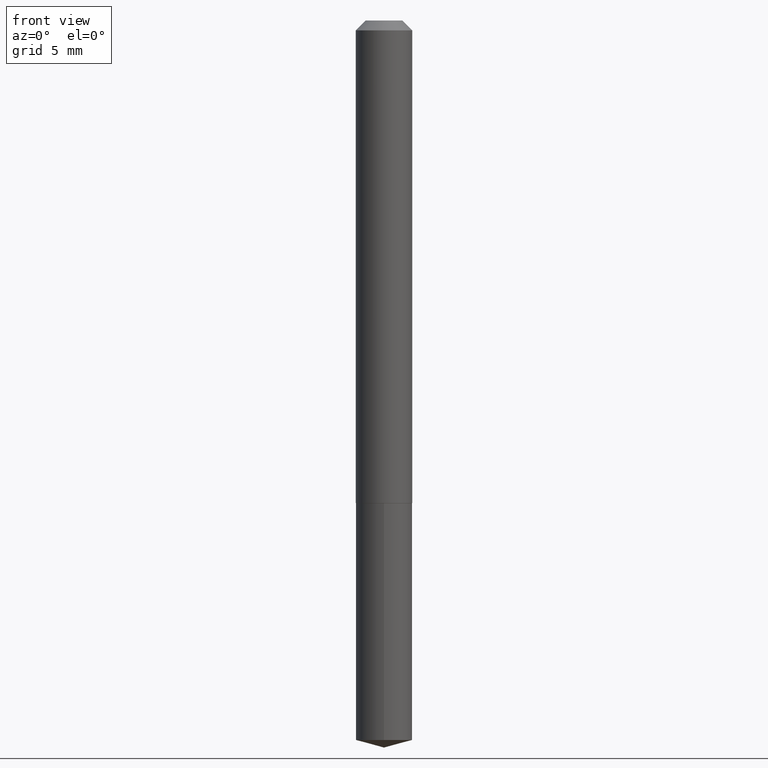
[diagram: clean part render]
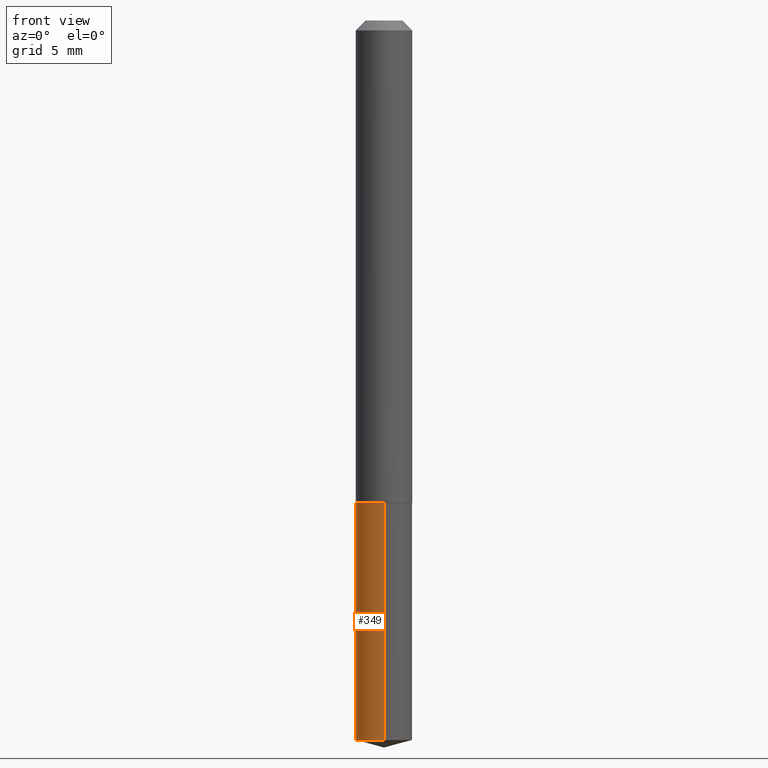
[diagram: same view with one face highlighted and labeled with its STEP entity id]
A machine part, front view. The second image highlights one B-rep face of the part: STEP entity #349.
In plain terms, the highlighted cylindrical surface (edge-blend (fillet) strip) has radius 2.2504 mm, axis along (-0, 0, 1).
Its self-contained STEP definition (entity closure, byte-faithful):
#2 = EDGE_CURVE ( 'NONE', #19, #376, #138, .T. ) ;
#4 = LINE ( 'NONE', #361, #304 ) ;
#12 = EDGE_CURVE ( 'NONE', #376, #255, #97, .T. ) ;
#17 = DIRECTION ( 'NONE',  ( -6.982962677686265133E-15, -1.000000000000000000, 3.083349879982238325E-15 ) ) ;
#19 = VERTEX_POINT ( 'NONE', #49 ) ;
#20 = CARTESIAN_POINT ( 'NONE',  ( 5.526122166285560091E-29, -7.889979991911582410E-15, -2.259759701550603239 ) ) ;
#43 = VECTOR ( 'NONE', #109, 39.37007874015748143 ) ;
#49 = CARTESIAN_POINT ( 'NONE',  ( 6.295408638835040708E-16, 0.08859999999999210174, -2.259759701550603683 ) ) ;
#62 = DIRECTION ( 'NONE',  ( -2.445402010456052703E-29, 3.491576994128970532E-15, 1.000000000000000000 ) ) ;
#79 = AXIS2_PLACEMENT_3D ( 'NONE', #335, #129, #247 ) ;
#80 = VERTEX_POINT ( 'NONE', #234 ) ;
#97 = CIRCLE ( 'NONE', #315, 0.08859999999999999820 ) ;
#109 = DIRECTION ( 'NONE',  ( -2.445402010456052423E-29, 3.491576994128970532E-15, 1.000000000000000000 ) ) ;
#128 = CIRCLE ( 'NONE', #212, 0.08859999999999999820 ) ;
#129 = DIRECTION ( 'NONE',  ( -2.445402010456052703E-29, 3.491576994128970532E-15, 1.000000000000000000 ) ) ;
#130 = CYLINDRICAL_SURFACE ( 'NONE', #79, 0.08859999999999999820 ) ;
#131 = EDGE_CURVE ( 'NONE', #19, #80, #128, .T. ) ;
#138 = LINE ( 'NONE', #260, #43 ) ;
#151 = CARTESIAN_POINT ( 'NONE',  ( -6.186904932429659750E-16, -0.08860000000000528564, -1.515800000000000036 ) ) ;
#160 = ORIENTED_EDGE ( 'NONE', *, *, #290, .T. ) ;
#176 = ORIENTED_EDGE ( 'NONE', *, *, #12, .F. ) ;
#187 = EDGE_LOOP ( 'NONE', ( #283, #316, #160, #176 ) ) ;
#197 = DIRECTION ( 'NONE',  ( -2.445402010456052703E-29, 3.491576994128970532E-15, 1.000000000000000000 ) ) ;
#212 = AXIS2_PLACEMENT_3D ( 'NONE', #20, #197, #326 ) ;
#214 = FACE_OUTER_BOUND ( 'NONE', #187, .T. ) ;
#228 = CARTESIAN_POINT ( 'NONE',  ( 3.706841616415430808E-29, -5.292387413418440845E-15, -1.515800000000000258 ) ) ;
#234 = CARTESIAN_POINT ( 'NONE',  ( -6.186904932429477326E-16, -0.08860000000000789466, -2.259759701550602795 ) ) ;
#240 = CARTESIAN_POINT ( 'NONE',  ( 6.295408638835040708E-16, 0.08859999999999469689, -1.515800000000000480 ) ) ;
#247 = DIRECTION ( 'NONE',  ( -6.982962677686265133E-15, -1.000000000000000000, 3.083349879982238325E-15 ) ) ;
#255 = VERTEX_POINT ( 'NONE', #151 ) ;
#260 = CARTESIAN_POINT ( 'NONE',  ( 6.295408638834857298E-16, 0.08859999999999469689, -1.515800000000000480 ) ) ;
#283 = ORIENTED_EDGE ( 'NONE', *, *, #2, .F. ) ;
#290 = EDGE_CURVE ( 'NONE', #80, #255, #4, .T. ) ;
#304 = VECTOR ( 'NONE', #390, 39.37007874015748143 ) ;
#315 = AXIS2_PLACEMENT_3D ( 'NONE', #228, #62, #17 ) ;
#316 = ORIENTED_EDGE ( 'NONE', *, *, #131, .T. ) ;
#326 = DIRECTION ( 'NONE',  ( -6.982962677686265133E-15, -1.000000000000000000, 3.083349879982238325E-15 ) ) ;
#335 = CARTESIAN_POINT ( 'NONE',  ( 3.706841616415430808E-29, -5.292387413418440845E-15, -1.515800000000000258 ) ) ;
#349 = ADVANCED_FACE ( 'NONE', ( #214 ), #130, .T. ) ;
#361 = CARTESIAN_POINT ( 'NONE',  ( -6.186904932429659750E-16, -0.08860000000000528564, -1.515800000000000036 ) ) ;
#376 = VERTEX_POINT ( 'NONE', #240 ) ;
#390 = DIRECTION ( 'NONE',  ( -2.445402010456052423E-29, 3.491576994128970532E-15, 1.000000000000000000 ) ) ;